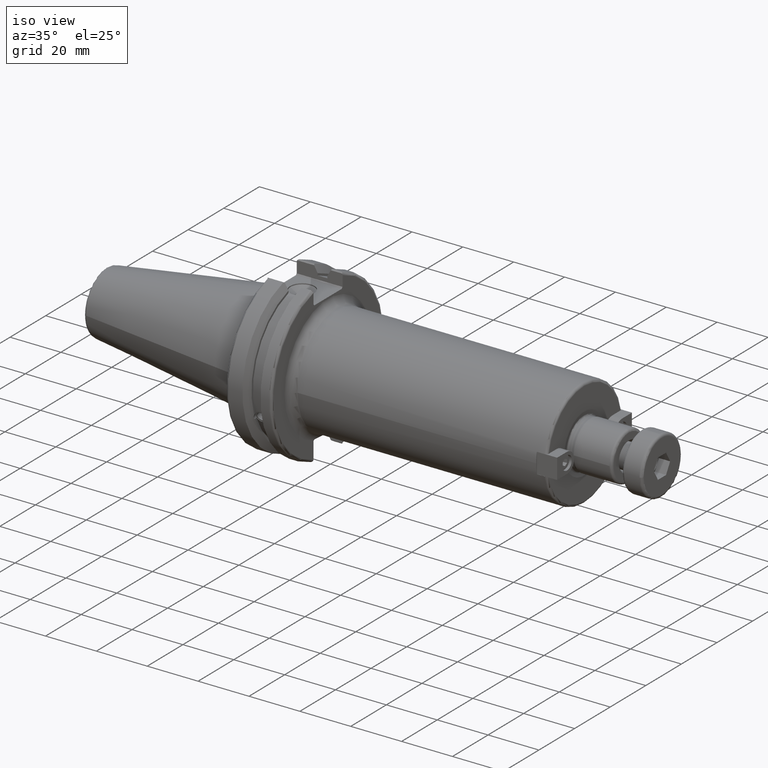
[diagram: clean part render]
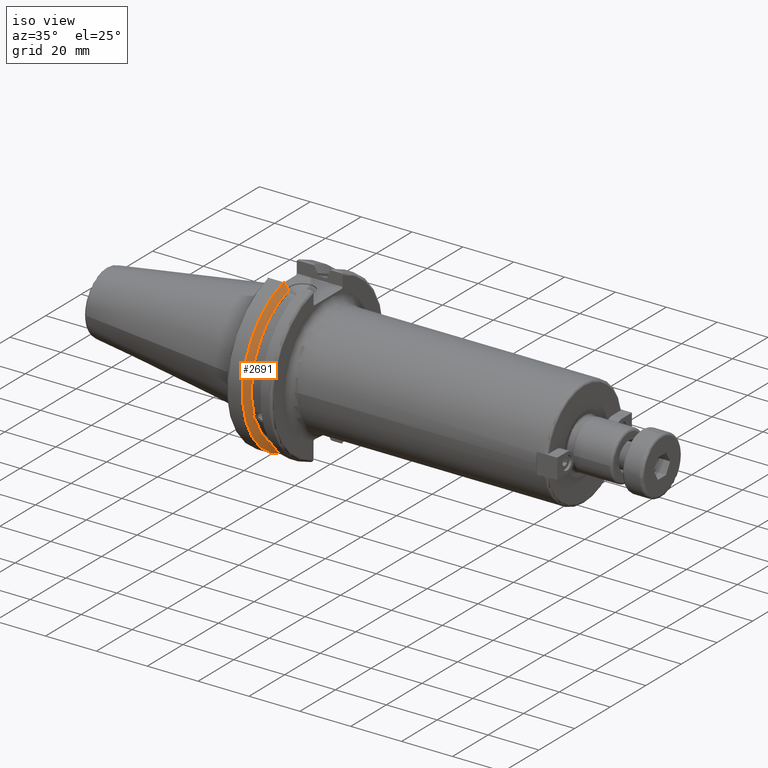
[diagram: same view with one face highlighted and labeled with its STEP entity id]
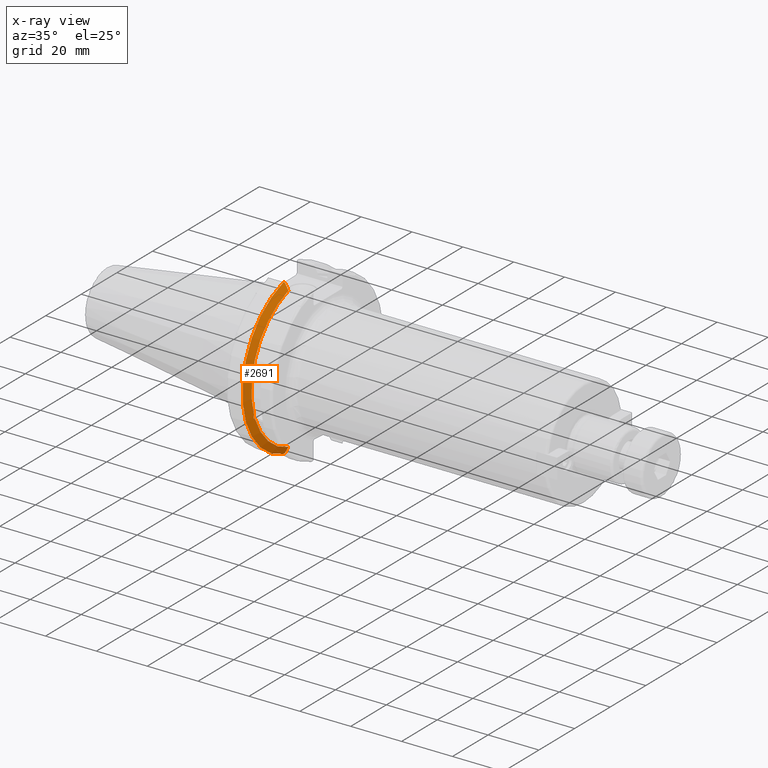
[diagram: x-ray of the same camera — body ghosted, the highlighted face saturated]
A machine part, iso view. The second image highlights one B-rep face of the part: STEP entity #2691.
The next image is the same camera in x-ray: the body ghosted, the highlighted face saturated — about 0% of this face is hidden behind the body in this view.
In plain terms, the highlighted conical surface has half-angle 60 deg.
Its self-contained STEP definition (entity closure, byte-faithful):
#63=(
BOUNDED_CURVE()
B_SPLINE_CURVE(2,(#4759,#4760,#4761),.UNSPECIFIED.,.F.,.F.)
B_SPLINE_CURVE_WITH_KNOTS((3,3),(0.,0.276549142796136),.UNSPECIFIED.)
CURVE()
GEOMETRIC_REPRESENTATION_ITEM()
RATIONAL_B_SPLINE_CURVE((1.,1.00095203903316,1.00031614444813))
REPRESENTATION_ITEM('')
);
#64=(
BOUNDED_CURVE()
B_SPLINE_CURVE(2,(#4771,#4772,#4773),.UNSPECIFIED.,.F.,.F.)
B_SPLINE_CURVE_WITH_KNOTS((3,3),(0.0550586467392022,0.33160778953585),
 .UNSPECIFIED.)
CURVE()
GEOMETRIC_REPRESENTATION_ITEM()
RATIONAL_B_SPLINE_CURVE((1.00031614445148,1.00095203904325,1.))
REPRESENTATION_ITEM('')
);
#65=(
BOUNDED_CURVE()
B_SPLINE_CURVE(2,(#4810,#4811,#4812),.UNSPECIFIED.,.F.,.F.)
B_SPLINE_CURVE_WITH_KNOTS((3,3),(0.,0.0639048713676282),.UNSPECIFIED.)
CURVE()
GEOMETRIC_REPRESENTATION_ITEM()
RATIONAL_B_SPLINE_CURVE((1.,1.00028444218284,1.00047644010574))
REPRESENTATION_ITEM('')
);
#66=(
BOUNDED_CURVE()
B_SPLINE_CURVE(2,(#4818,#4819,#4820),.UNSPECIFIED.,.F.,.F.)
B_SPLINE_CURVE_WITH_KNOTS((3,3),(0.329353533631205,0.393258405001025),
 .UNSPECIFIED.)
CURVE()
GEOMETRIC_REPRESENTATION_ITEM()
RATIONAL_B_SPLINE_CURVE((1.00047644010572,1.00028444218283,1.))
REPRESENTATION_ITEM('')
);
#171=CONICAL_SURFACE('',#3063,30.3546886482472,1.0471975511966);
#191=B_SPLINE_CURVE_WITH_KNOTS('',3,(#4359,#4360,#4361,#4362,#4363,#4364,
#4365,#4366,#4367,#4368,#4369,#4370,#4371,#4372),.UNSPECIFIED.,.F.,.F.,
(4,2,2,2,2,2,4),(0.451995700189025,0.464547828547662,0.504528771685167,
0.544509714822672,0.584490657960177,0.624471601097683,0.63702372945632),
 .UNSPECIFIED.);
#345=FACE_OUTER_BOUND('',#518,.T.);
#518=EDGE_LOOP('',(#2282,#2283,#2284,#2285,#2286,#2287,#2288,#2289));
#973=CIRCLE('',#2949,28.9593772964944);
#994=CIRCLE('',#3004,31.75);
#1018=CIRCLE('',#3064,28.9593772964944);
#1132=VERTEX_POINT('',#4356);
#1133=VERTEX_POINT('',#4358);
#1150=VERTEX_POINT('',#4450);
#1211=VERTEX_POINT('',#4756);
#1212=VERTEX_POINT('',#4758);
#1215=VERTEX_POINT('',#4770);
#1221=VERTEX_POINT('',#4808);
#1222=VERTEX_POINT('',#4814);
#1424=EDGE_CURVE('',#1133,#1132,#191,.T.);
#1448=EDGE_CURVE('',#1133,#1150,#973,.T.);
#1531=EDGE_CURVE('',#1212,#1211,#63,.T.);
#1537=EDGE_CURVE('',#1215,#1150,#64,.T.);
#1547=EDGE_CURVE('',#1221,#1211,#65,.T.);
#1549=EDGE_CURVE('',#1221,#1222,#994,.T.);
#1550=EDGE_CURVE('',#1215,#1222,#66,.T.);
#1612=EDGE_CURVE('',#1212,#1132,#1018,.T.);
#2282=ORIENTED_EDGE('',*,*,#1424,.T.);
#2283=ORIENTED_EDGE('',*,*,#1612,.F.);
#2284=ORIENTED_EDGE('',*,*,#1531,.T.);
#2285=ORIENTED_EDGE('',*,*,#1547,.F.);
#2286=ORIENTED_EDGE('',*,*,#1549,.T.);
#2287=ORIENTED_EDGE('',*,*,#1550,.F.);
#2288=ORIENTED_EDGE('',*,*,#1537,.T.);
#2289=ORIENTED_EDGE('',*,*,#1448,.F.);
#2691=ADVANCED_FACE('',(#345),#171,.T.);
#2949=AXIS2_PLACEMENT_3D('',#4451,#3421,#3422);
#3004=AXIS2_PLACEMENT_3D('',#4816,#3574,#3575);
#3063=AXIS2_PLACEMENT_3D('',#4975,#3723,#3724);
#3064=AXIS2_PLACEMENT_3D('',#4976,#3725,#3726);
#3421=DIRECTION('center_axis',(1.,0.,0.));
#3422=DIRECTION('ref_axis',(0.,0.,-1.));
#3574=DIRECTION('center_axis',(1.,0.,0.));
#3575=DIRECTION('ref_axis',(0.,0.,-1.));
#3723=DIRECTION('center_axis',(-1.,0.,0.));
#3724=DIRECTION('ref_axis',(0.,-1.,-1.22464679914735E-16));
#3725=DIRECTION('center_axis',(1.,0.,0.));
#3726=DIRECTION('ref_axis',(0.,0.,-1.));
#4356=CARTESIAN_POINT('',(9.2191,-27.4956274489925,-9.09043478536246));
#4358=CARTESIAN_POINT('',(9.2191,-26.9060914640648,-10.7101715919071));
#4359=CARTESIAN_POINT('Ctrl Pts',(9.2191,-26.9060914640648,-10.7101715919071));
#4360=CARTESIAN_POINT('Ctrl Pts',(9.20497959280038,-26.9406927482839,-10.6893765730703));
#4361=CARTESIAN_POINT('Ctrl Pts',(9.19150701821433,-26.9744191989197,-10.6676007180674));
#4362=CARTESIAN_POINT('Ctrl Pts',(9.13811855884095,-27.1113422433189,-10.5723885976054));
#4363=CARTESIAN_POINT('Ctrl Pts',(9.09998029158246,-27.2180531796526,-10.4801333026531));
#4364=CARTESIAN_POINT('Ctrl Pts',(9.04778935539424,-27.3968610665578,-10.2639559818059));
#4365=CARTESIAN_POINT('Ctrl Pts',(9.0341,-27.4684373304961,-10.139516340139));
#4366=CARTESIAN_POINT('Ctrl Pts',(9.0341,-27.559599249844,-9.88905102521651));
#4367=CARTESIAN_POINT('Ctrl Pts',(9.04778935539424,-27.5847569104121,-9.74771639360671));
#4368=CARTESIAN_POINT('Ctrl Pts',(9.09998029158246,-27.5867382255984,-9.46717946402648));
#4369=CARTESIAN_POINT('Ctrl Pts',(9.13811855884095,-27.5642934663232,-9.32791534028656));
#4370=CARTESIAN_POINT('Ctrl Pts',(9.19150701821434,-27.5206055003512,-9.16696618806878));
#4371=CARTESIAN_POINT('Ctrl Pts',(9.20497959280038,-27.5087667900418,-9.12860597076218));
#4372=CARTESIAN_POINT('Ctrl Pts',(9.2191,-27.4956274489925,-9.09043478536246));
#4450=CARTESIAN_POINT('',(9.2191,-8.19,-27.7771386827498));
#4451=CARTESIAN_POINT('Origin',(9.2191,0.,0.));
#4756=CARTESIAN_POINT('',(7.88668530351257,-8.19,30.1755016258903));
#4758=CARTESIAN_POINT('',(9.2191,-8.19,27.7771386827498));
#4759=CARTESIAN_POINT('Ctrl Pts',(9.2191,-8.19,27.7771386827498));
#4760=CARTESIAN_POINT('Ctrl Pts',(8.58046356152393,-8.19,28.9303689539705));
#4761=CARTESIAN_POINT('Ctrl Pts',(7.88668530351257,-8.19,30.1755016258903));
#4770=CARTESIAN_POINT('',(7.88668530351256,-8.19,-30.1755016258903));
#4771=CARTESIAN_POINT('Ctrl Pts',(7.88668530351256,-8.19,-30.1755016258903));
#4772=CARTESIAN_POINT('Ctrl Pts',(8.5804635615235,-8.19,-28.9303689539712));
#4773=CARTESIAN_POINT('Ctrl Pts',(9.2191,-8.19,-27.7771386827498));
#4808=CARTESIAN_POINT('',(7.60793323092436,-8.67204822802685,30.5427254764662));
#4810=CARTESIAN_POINT('Ctrl Pts',(7.60793323092436,-8.67204822802686,30.5427254764662));
#4811=CARTESIAN_POINT('Ctrl Pts',(7.74899148121626,-8.42917748262648,30.357706789263));
#4812=CARTESIAN_POINT('Ctrl Pts',(7.88668530351257,-8.19,30.1755016258903));
#4814=CARTESIAN_POINT('',(7.60793323092436,-8.67204822802685,-30.5427254764662));
#4816=CARTESIAN_POINT('Origin',(7.60793323092436,0.,0.));
#4818=CARTESIAN_POINT('Ctrl Pts',(7.88668530351256,-8.19,-30.1755016258903));
#4819=CARTESIAN_POINT('Ctrl Pts',(7.74899148121159,-8.42917748263467,-30.3577067892692));
#4820=CARTESIAN_POINT('Ctrl Pts',(7.60793323092435,-8.67204822802687,-30.5427254764662));
#4975=CARTESIAN_POINT('Origin',(8.41351661546218,0.,0.));
#4976=CARTESIAN_POINT('Origin',(9.2191,0.,0.));